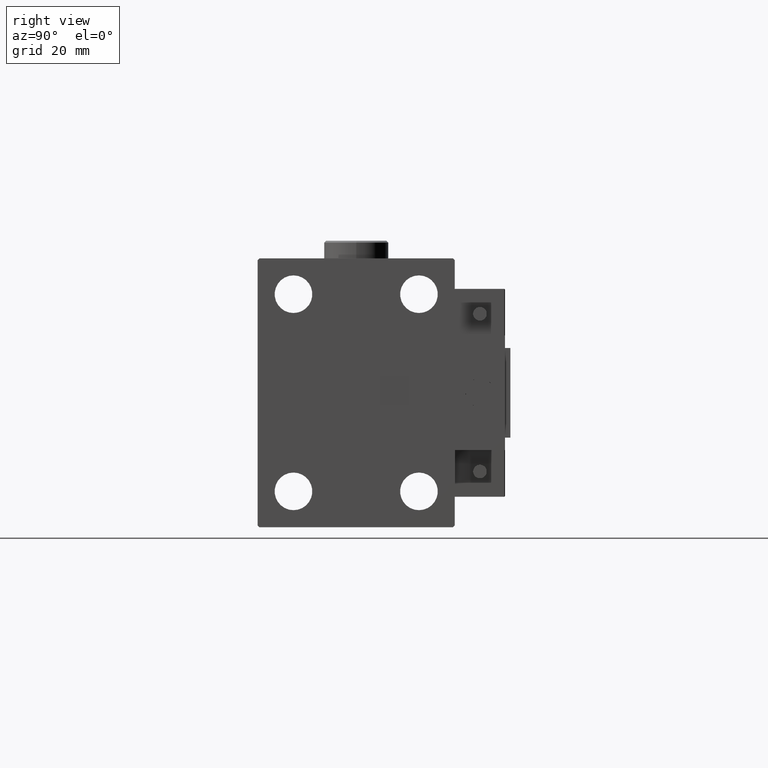
[diagram: clean part render]
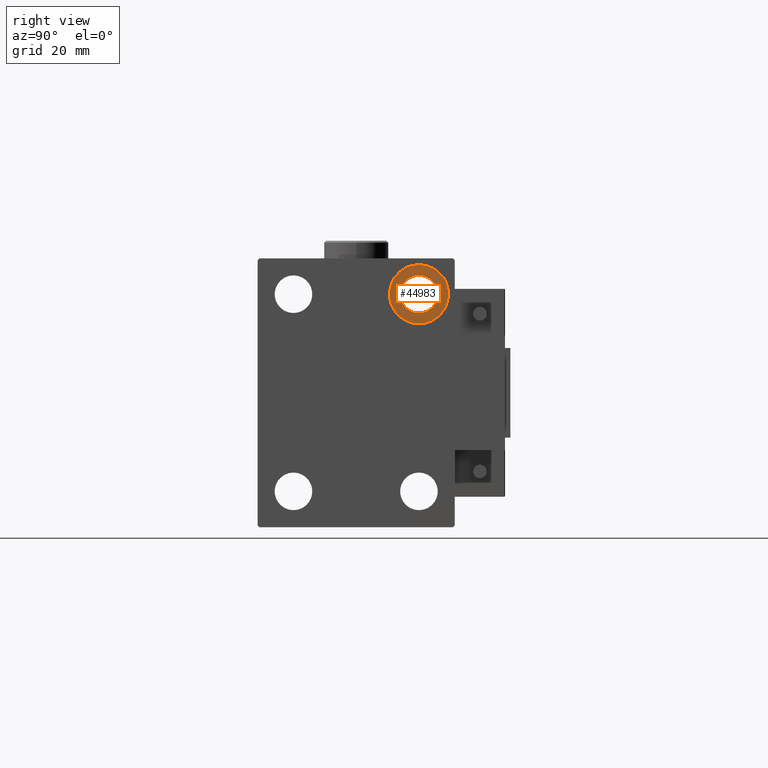
[diagram: same view with one face highlighted and labeled with its STEP entity id]
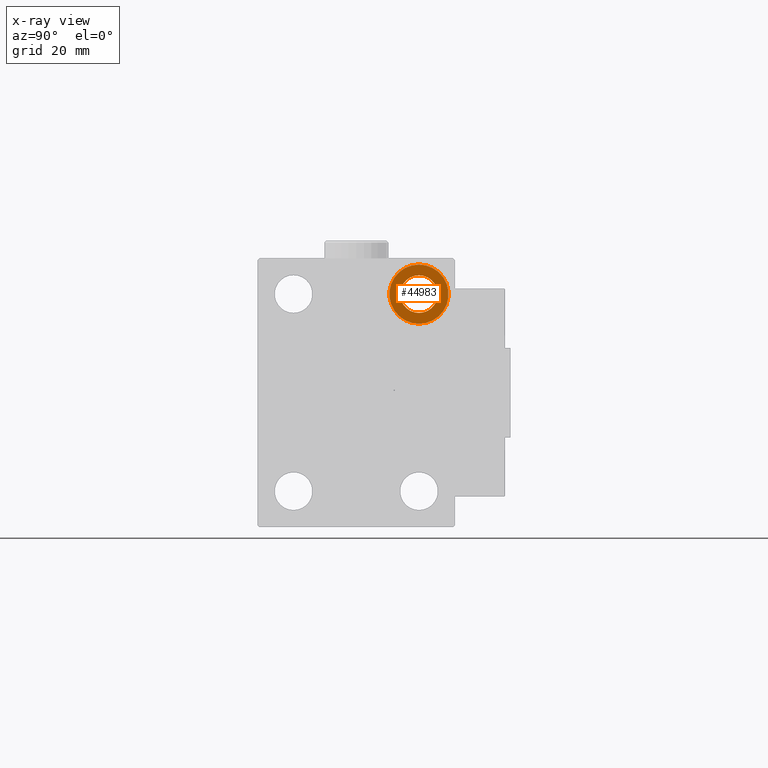
[diagram: x-ray of the same camera — body ghosted, the highlighted face saturated]
A machine part, right view. The second image highlights one B-rep face of the part: STEP entity #44983.
The next image is the same camera in x-ray: the body ghosted, the highlighted face saturated — about 0% of this face is hidden behind the body in this view.
In plain terms, the highlighted planar face has unit normal (1, 0, 0).
Its self-contained STEP definition (entity closure, byte-faithful):
#1475 = FACE_BOUND ( 'NONE', #11950, .T. ) ;
#4466 = CARTESIAN_POINT ( 'NONE',  ( 64.00000000000000000, 17.50000000000000355, 27.49999999999999645 ) ) ;
#4727 = DIRECTION ( 'NONE',  ( 0.000000000000000000, 0.000000000000000000, 1.000000000000000000 ) ) ;
#6033 = CARTESIAN_POINT ( 'NONE',  ( 64.00000000000000000, 0.000000000000000000, 0.000000000000000000 ) ) ;
#6984 = DIRECTION ( 'NONE',  ( -1.000000000000000000, -0.000000000000000000, -0.000000000000000000 ) ) ;
#7064 = AXIS2_PLACEMENT_3D ( 'NONE', #6033, #18595, #22924 ) ;
#8342 = ORIENTED_EDGE ( 'NONE', *, *, #10022, .F. ) ;
#8356 = CARTESIAN_POINT ( 'NONE',  ( 64.00000000000000000, 17.50000000000000355, 19.25000000000000000 ) ) ;
#10022 = EDGE_CURVE ( 'NONE', #36724, #28843, #25524, .T. ) ;
#10957 = DIRECTION ( 'NONE',  ( 0.000000000000000000, 0.000000000000000000, -1.000000000000000000 ) ) ;
#11746 = CARTESIAN_POINT ( 'NONE',  ( 64.00000000000000000, 17.50000000000000355, 27.49999999999999645 ) ) ;
#11950 = EDGE_LOOP ( 'NONE', ( #42037, #31983 ) ) ;
#14513 = CIRCLE ( 'NONE', #49732, 8.249999999999992895 ) ;
#15287 = CIRCLE ( 'NONE', #17855, 5.249999999999997335 ) ;
#16084 = EDGE_CURVE ( 'NONE', #17798, #44418, #35026, .T. ) ;
#16766 = DIRECTION ( 'NONE',  ( -1.000000000000000000, -0.000000000000000000, -0.000000000000000000 ) ) ;
#17798 = VERTEX_POINT ( 'NONE', #33874 ) ;
#17855 = AXIS2_PLACEMENT_3D ( 'NONE', #11746, #36156, #23576 ) ;
#18595 = DIRECTION ( 'NONE',  ( 1.000000000000000000, 0.000000000000000000, -0.000000000000000000 ) ) ;
#19251 = CARTESIAN_POINT ( 'NONE',  ( 64.00000000000000000, 17.50000000000000355, 27.49999999999999645 ) ) ;
#22924 = DIRECTION ( 'NONE',  ( 0.000000000000000000, 0.000000000000000000, 1.000000000000000000 ) ) ;
#23576 = DIRECTION ( 'NONE',  ( 0.000000000000000000, 0.000000000000000000, -1.000000000000000000 ) ) ;
#25524 = CIRCLE ( 'NONE', #32336, 8.249999999999992895 ) ;
#28843 = VERTEX_POINT ( 'NONE', #30663 ) ;
#30616 = CARTESIAN_POINT ( 'NONE',  ( 64.00000000000000000, 17.50000000000000355, 27.49999999999999645 ) ) ;
#30663 = CARTESIAN_POINT ( 'NONE',  ( 64.00000000000000000, 17.50000000000000355, 35.74999999999999289 ) ) ;
#31983 = ORIENTED_EDGE ( 'NONE', *, *, #16084, .T. ) ;
#32336 = AXIS2_PLACEMENT_3D ( 'NONE', #30616, #6984, #39444 ) ;
#33596 = EDGE_LOOP ( 'NONE', ( #8342, #46275 ) ) ;
#33874 = CARTESIAN_POINT ( 'NONE',  ( 64.00000000000000000, 17.50000000000000355, 22.25000000000000000 ) ) ;
#34179 = FACE_OUTER_BOUND ( 'NONE', #33596, .T. ) ;
#35026 = CIRCLE ( 'NONE', #44482, 5.249999999999997335 ) ;
#36035 = EDGE_CURVE ( 'NONE', #44418, #17798, #15287, .T. ) ;
#36156 = DIRECTION ( 'NONE',  ( -1.000000000000000000, -0.000000000000000000, -0.000000000000000000 ) ) ;
#36724 = VERTEX_POINT ( 'NONE', #8356 ) ;
#38992 = PLANE ( 'NONE',  #7064 ) ;
#39293 = EDGE_CURVE ( 'NONE', #28843, #36724, #14513, .T. ) ;
#39444 = DIRECTION ( 'NONE',  ( 0.000000000000000000, 0.000000000000000000, 1.000000000000000000 ) ) ;
#39655 = DIRECTION ( 'NONE',  ( -1.000000000000000000, -0.000000000000000000, -0.000000000000000000 ) ) ;
#42037 = ORIENTED_EDGE ( 'NONE', *, *, #36035, .T. ) ;
#44418 = VERTEX_POINT ( 'NONE', #50490 ) ;
#44482 = AXIS2_PLACEMENT_3D ( 'NONE', #19251, #39655, #10957 ) ;
#44983 = ADVANCED_FACE ( 'NONE', ( #34179, #1475 ), #38992, .T. ) ;
#46275 = ORIENTED_EDGE ( 'NONE', *, *, #39293, .F. ) ;
#49732 = AXIS2_PLACEMENT_3D ( 'NONE', #4466, #16766, #4727 ) ;
#50490 = CARTESIAN_POINT ( 'NONE',  ( 64.00000000000000000, 17.50000000000000355, 32.74999999999999289 ) ) ;